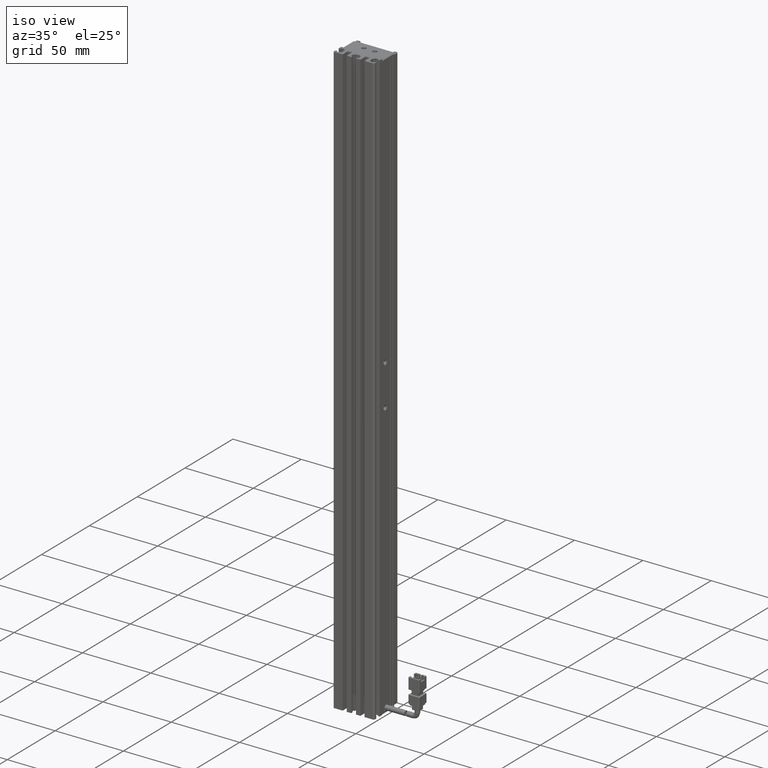
[diagram: clean part render]
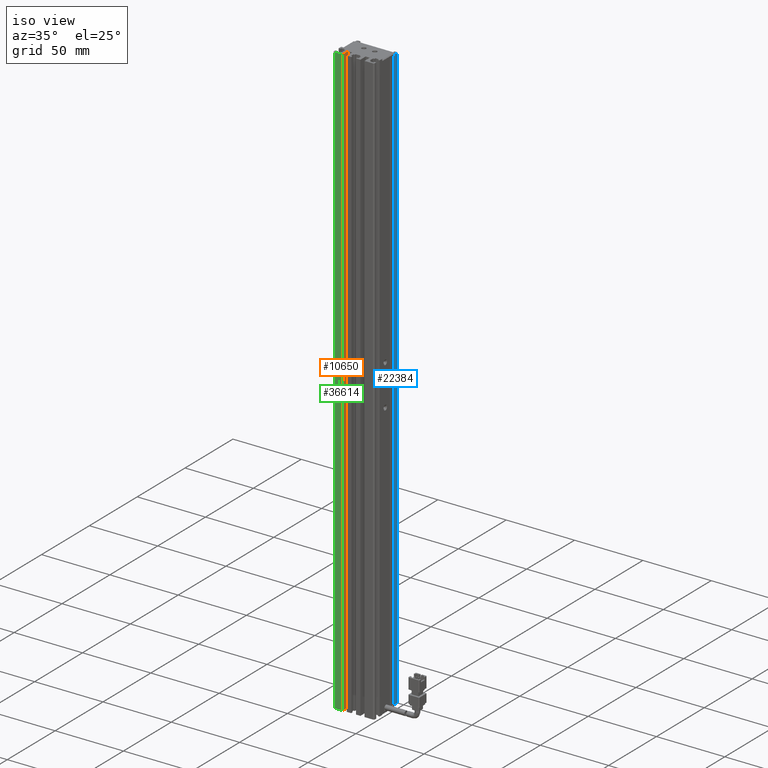
[diagram: same view with three faces highlighted in distinct colors, each labeled with its STEP entity id]
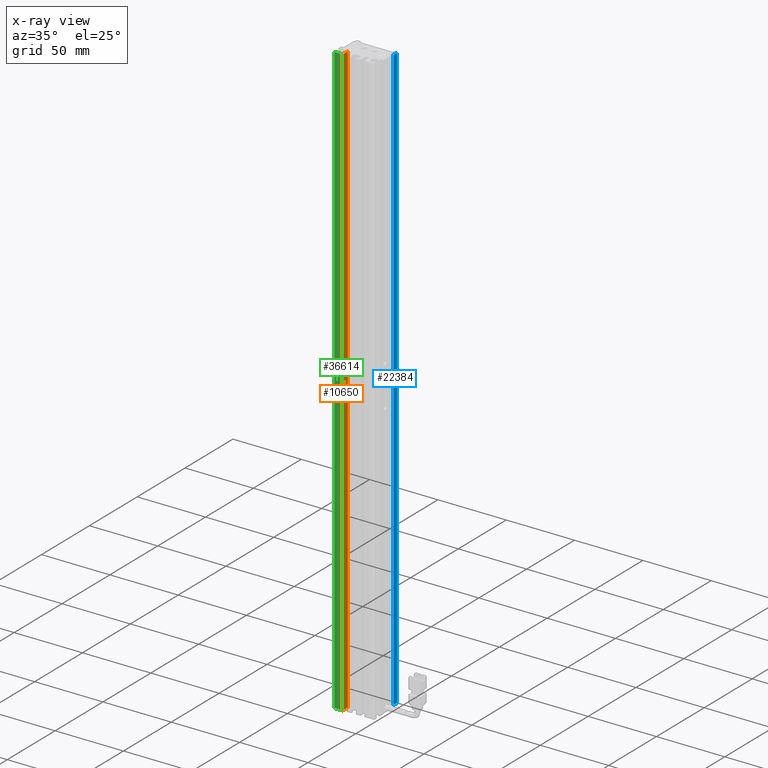
[diagram: x-ray of the same camera — body ghosted, the three highlighted faces saturated]
A machine part, iso view with three faces highlighted in distinct colors.
The next image is the same camera in x-ray (body ghosted, the three faces saturated) — at least one of them is partly hidden behind the body in this view.
Their STEP definitions:

[orange] entity #10650 — the highlighted planar face has unit normal (-1, 0, 0).
#5476 = CARTESIAN_POINT ( 'NONE',  ( 32.92537974683543200, 10.69594479660386800, -332.0000000000000000 ) ) ;
#6691 = CARTESIAN_POINT ( 'NONE',  ( 32.92537974683543200, 7.083797468354437600, -332.0000000000000000 ) ) ;
#10005 = VERTEX_POINT ( 'NONE', #19930 ) ;
#10650 = ADVANCED_FACE ( 'NONE', ( #27179 ), #70108, .F. ) ;
#12515 = VECTOR ( 'NONE', #76341, 1000.000000000000000 ) ;
#13458 = CARTESIAN_POINT ( 'NONE',  ( 32.92537974683543200, 10.69594479660386800, 102.0000000000000000 ) ) ;
#15641 = LINE ( 'NONE', #59987, #31949 ) ;
#17003 = DIRECTION ( 'NONE',  ( 0.0000000000000000000, 1.000000000000000000, -0.0000000000000000000 ) ) ;
#17947 = EDGE_CURVE ( 'NONE', #27680, #68668, #15641, .T. ) ;
#19930 = CARTESIAN_POINT ( 'NONE',  ( 32.92537974683543200, 16.19594479660386500, -332.0000000000000000 ) ) ;
#21260 = DIRECTION ( 'NONE',  ( -1.000000000000000000, 0.0000000000000000000, 0.0000000000000000000 ) ) ;
#26816 = ORIENTED_EDGE ( 'NONE', *, *, #35870, .F. ) ;
#27179 = FACE_OUTER_BOUND ( 'NONE', #42237, .T. ) ;
#27680 = VERTEX_POINT ( 'NONE', #13458 ) ;
#28120 = LINE ( 'NONE', #28600, #44418 ) ;
#28600 = CARTESIAN_POINT ( 'NONE',  ( 32.92537974683543200, 16.19594479660386500, 102.0000000000000000 ) ) ;
#28886 = LINE ( 'NONE', #57804, #12515 ) ;
#31949 = VECTOR ( 'NONE', #17003, 1000.000000000000000 ) ;
#34405 = ORIENTED_EDGE ( 'NONE', *, *, #17947, .F. ) ;
#35058 = VECTOR ( 'NONE', #67927, 1000.000000000000000 ) ;
#35870 = EDGE_CURVE ( 'NONE', #78885, #27680, #28886, .T. ) ;
#36827 = ORIENTED_EDGE ( 'NONE', *, *, #65127, .T. ) ;
#42237 = EDGE_LOOP ( 'NONE', ( #36827, #34405, #26816, #73539 ) ) ;
#44418 = VECTOR ( 'NONE', #53546, 1000.000000000000000 ) ;
#47813 = CARTESIAN_POINT ( 'NONE',  ( 32.92537974683543200, 16.19594479660386500, 102.0000000000000000 ) ) ;
#53546 = DIRECTION ( 'NONE',  ( 0.0000000000000000000, -0.0000000000000000000, 1.000000000000000000 ) ) ;
#57804 = CARTESIAN_POINT ( 'NONE',  ( 32.92537974683543200, 10.69594479660386800, 102.0000000000000000 ) ) ;
#58007 = CARTESIAN_POINT ( 'NONE',  ( 32.92537974683543200, 7.083797468354437600, 102.0000000000000000 ) ) ;
#59987 = CARTESIAN_POINT ( 'NONE',  ( 32.92537974683543200, 7.083797468354437600, 102.0000000000000000 ) ) ;
#60034 = AXIS2_PLACEMENT_3D ( 'NONE', #58007, #21260, #64189 ) ;
#62948 = LINE ( 'NONE', #6691, #35058 ) ;
#64189 = DIRECTION ( 'NONE',  ( 0.0000000000000000000, 0.0000000000000000000, 1.000000000000000000 ) ) ;
#65127 = EDGE_CURVE ( 'NONE', #10005, #68668, #28120, .T. ) ;
#67927 = DIRECTION ( 'NONE',  ( 0.0000000000000000000, 1.000000000000000000, -0.0000000000000000000 ) ) ;
#68668 = VERTEX_POINT ( 'NONE', #47813 ) ;
#70108 = PLANE ( 'NONE',  #60034 ) ;
#73539 = ORIENTED_EDGE ( 'NONE', *, *, #75223, .T. ) ;
#75223 = EDGE_CURVE ( 'NONE', #78885, #10005, #62948, .T. ) ;
#76341 = DIRECTION ( 'NONE',  ( 0.0000000000000000000, 0.0000000000000000000, 1.000000000000000000 ) ) ;
#78885 = VERTEX_POINT ( 'NONE', #5476 ) ;

[blue] entity #22384 — the highlighted planar face has unit normal (-1, 0, 0).
#1293 = DIRECTION ( 'NONE',  ( -0.0000000000000000000, -0.0000000000000000000, -1.000000000000000000 ) ) ;
#2263 = VERTEX_POINT ( 'NONE', #39322 ) ;
#3041 = EDGE_CURVE ( 'NONE', #22731, #2263, #16363, .T. ) ;
#3355 = CARTESIAN_POINT ( 'NONE',  ( 55.92537974683542500, 30.69594479660386800, 102.0000000000000000 ) ) ;
#9080 = ORIENTED_EDGE ( 'NONE', *, *, #68050, .F. ) ;
#11260 = CARTESIAN_POINT ( 'NONE',  ( 55.92537974683542500, 34.69594479660387500, -330.0000000000000000 ) ) ;
#13481 = EDGE_CURVE ( 'NONE', #75061, #28888, #47395, .T. ) ;
#16363 = LINE ( 'NONE', #29429, #73973 ) ;
#19723 = DIRECTION ( 'NONE',  ( -1.000000000000000000, 0.0000000000000000000, 0.0000000000000000000 ) ) ;
#22384 = ADVANCED_FACE ( 'NONE', ( #37646 ), #68598, .F. ) ;
#22731 = VERTEX_POINT ( 'NONE', #23414 ) ;
#23414 = CARTESIAN_POINT ( 'NONE',  ( 55.92537974683542500, 34.69594479660387500, 99.99999999999998600 ) ) ;
#27688 = VECTOR ( 'NONE', #64842, 1000.000000000000000 ) ;
#28888 = VERTEX_POINT ( 'NONE', #58152 ) ;
#29429 = CARTESIAN_POINT ( 'NONE',  ( 55.92537974683542500, 35.69594479660387500, 99.99999999999998600 ) ) ;
#29978 = DIRECTION ( 'NONE',  ( -0.0000000000000000000, -1.000000000000000000, -0.0000000000000000000 ) ) ;
#35469 = LINE ( 'NONE', #43993, #64285 ) ;
#36341 = EDGE_LOOP ( 'NONE', ( #51937, #9080, #60209, #45596 ) ) ;
#37646 = FACE_OUTER_BOUND ( 'NONE', #36341, .T. ) ;
#39322 = CARTESIAN_POINT ( 'NONE',  ( 55.92537974683542500, 30.69594479660386800, 99.99999999999998600 ) ) ;
#41535 = EDGE_CURVE ( 'NONE', #22731, #75061, #35469, .T. ) ;
#43993 = CARTESIAN_POINT ( 'NONE',  ( 55.92537974683542500, 34.69594479660387500, 102.0000000000000000 ) ) ;
#45596 = ORIENTED_EDGE ( 'NONE', *, *, #41535, .F. ) ;
#47395 = LINE ( 'NONE', #67345, #63762 ) ;
#51937 = ORIENTED_EDGE ( 'NONE', *, *, #3041, .T. ) ;
#56501 = CARTESIAN_POINT ( 'NONE',  ( 55.92537974683542500, 7.083797468354437600, 102.0000000000000000 ) ) ;
#57300 = AXIS2_PLACEMENT_3D ( 'NONE', #56501, #19723, #62711 ) ;
#58152 = CARTESIAN_POINT ( 'NONE',  ( 55.92537974683542500, 30.69594479660386800, -330.0000000000000000 ) ) ;
#60209 = ORIENTED_EDGE ( 'NONE', *, *, #13481, .F. ) ;
#62711 = DIRECTION ( 'NONE',  ( 0.0000000000000000000, 0.0000000000000000000, 1.000000000000000000 ) ) ;
#63762 = VECTOR ( 'NONE', #73267, 1000.000000000000000 ) ;
#64285 = VECTOR ( 'NONE', #1293, 1000.000000000000000 ) ;
#64842 = DIRECTION ( 'NONE',  ( 0.0000000000000000000, 0.0000000000000000000, 1.000000000000000000 ) ) ;
#67345 = CARTESIAN_POINT ( 'NONE',  ( 55.92537974683542500, 35.69594479660387500, -330.0000000000000000 ) ) ;
#68050 = EDGE_CURVE ( 'NONE', #28888, #2263, #76688, .T. ) ;
#68598 = PLANE ( 'NONE',  #57300 ) ;
#73267 = DIRECTION ( 'NONE',  ( -0.0000000000000000000, -1.000000000000000000, -0.0000000000000000000 ) ) ;
#73973 = VECTOR ( 'NONE', #29978, 1000.000000000000000 ) ;
#75061 = VERTEX_POINT ( 'NONE', #11260 ) ;
#76688 = LINE ( 'NONE', #3355, #27688 ) ;

[green] entity #36614 — the highlighted planar face has unit normal (0, -1, 0).
#5260 = CARTESIAN_POINT ( 'NONE',  ( 40.92537974683542500, 10.69594479660386800, -332.0000000000000000 ) ) ;
#5476 = CARTESIAN_POINT ( 'NONE',  ( 32.92537974683543200, 10.69594479660386800, -332.0000000000000000 ) ) ;
#10288 = EDGE_CURVE ( 'NONE', #24729, #18073, #34886, .T. ) ;
#10986 = DIRECTION ( 'NONE',  ( 1.000000000000000000, 0.0000000000000000000, 0.0000000000000000000 ) ) ;
#12515 = VECTOR ( 'NONE', #76341, 1000.000000000000000 ) ;
#13458 = CARTESIAN_POINT ( 'NONE',  ( 32.92537974683543200, 10.69594479660386800, 102.0000000000000000 ) ) ;
#17122 = CARTESIAN_POINT ( 'NONE',  ( 40.92537974683542500, 10.69594479660386800, 102.0000000000000000 ) ) ;
#18073 = VERTEX_POINT ( 'NONE', #55094 ) ;
#23300 = DIRECTION ( 'NONE',  ( 0.0000000000000000000, -0.0000000000000000000, -1.000000000000000000 ) ) ;
#24729 = VERTEX_POINT ( 'NONE', #69677 ) ;
#24964 = ORIENTED_EDGE ( 'NONE', *, *, #10288, .T. ) ;
#27680 = VERTEX_POINT ( 'NONE', #13458 ) ;
#28886 = LINE ( 'NONE', #57804, #12515 ) ;
#29384 = VECTOR ( 'NONE', #10986, 1000.000000000000000 ) ;
#29578 = DIRECTION ( 'NONE',  ( 0.0000000000000000000, -0.0000000000000000000, -1.000000000000000000 ) ) ;
#32994 = ORIENTED_EDGE ( 'NONE', *, *, #54210, .T. ) ;
#34886 = LINE ( 'NONE', #72554, #51168 ) ;
#35870 = EDGE_CURVE ( 'NONE', #78885, #27680, #28886, .T. ) ;
#36614 = ADVANCED_FACE ( 'NONE', ( #41444 ), #47461, .T. ) ;
#41444 = FACE_OUTER_BOUND ( 'NONE', #44705, .T. ) ;
#41501 = LINE ( 'NONE', #5260, #57825 ) ;
#42044 = DIRECTION ( 'NONE',  ( 1.000000000000000000, 0.0000000000000000000, 0.0000000000000000000 ) ) ;
#44150 = AXIS2_PLACEMENT_3D ( 'NONE', #17122, #60101, #23300 ) ;
#44705 = EDGE_LOOP ( 'NONE', ( #68354, #24964, #32994, #59297 ) ) ;
#47461 = PLANE ( 'NONE',  #44150 ) ;
#51168 = VECTOR ( 'NONE', #29578, 1000.000000000000000 ) ;
#53997 = CARTESIAN_POINT ( 'NONE',  ( 40.92537974683542500, 10.69594479660386800, 102.0000000000000000 ) ) ;
#54210 = EDGE_CURVE ( 'NONE', #18073, #78885, #41501, .T. ) ;
#55094 = CARTESIAN_POINT ( 'NONE',  ( 26.92537974683542100, 10.69594479660386800, -332.0000000000000000 ) ) ;
#57804 = CARTESIAN_POINT ( 'NONE',  ( 32.92537974683543200, 10.69594479660386800, 102.0000000000000000 ) ) ;
#57825 = VECTOR ( 'NONE', #42044, 1000.000000000000000 ) ;
#59297 = ORIENTED_EDGE ( 'NONE', *, *, #35870, .T. ) ;
#60101 = DIRECTION ( 'NONE',  ( 0.0000000000000000000, -1.000000000000000000, 0.0000000000000000000 ) ) ;
#62091 = LINE ( 'NONE', #53997, #29384 ) ;
#65817 = EDGE_CURVE ( 'NONE', #24729, #27680, #62091, .T. ) ;
#68354 = ORIENTED_EDGE ( 'NONE', *, *, #65817, .F. ) ;
#69677 = CARTESIAN_POINT ( 'NONE',  ( 26.92537974683542100, 10.69594479660386800, 102.0000000000000000 ) ) ;
#72554 = CARTESIAN_POINT ( 'NONE',  ( 26.92537974683542100, 10.69594479660386800, 102.0000000000000000 ) ) ;
#76341 = DIRECTION ( 'NONE',  ( 0.0000000000000000000, 0.0000000000000000000, 1.000000000000000000 ) ) ;
#78885 = VERTEX_POINT ( 'NONE', #5476 ) ;